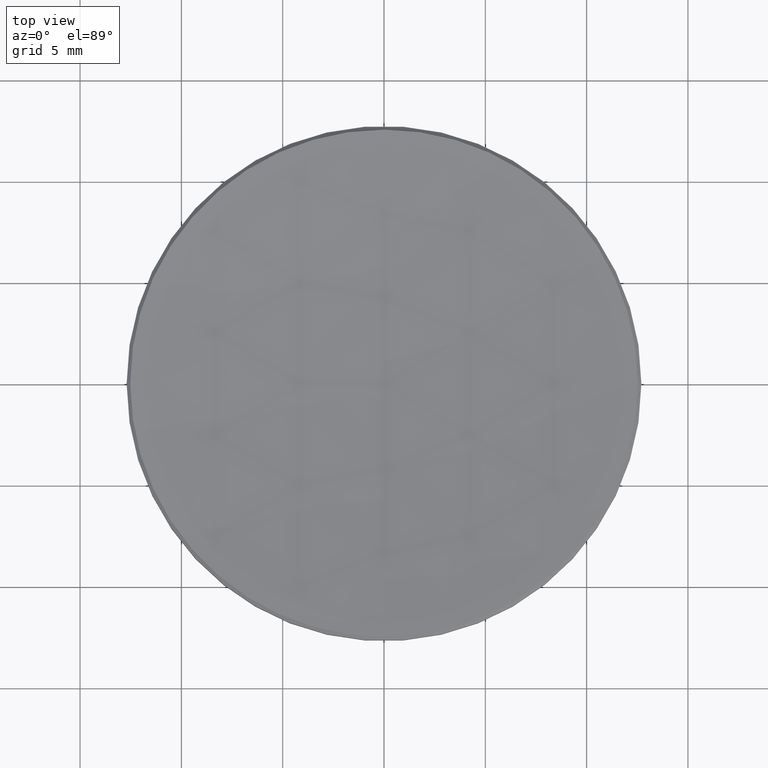
[diagram: clean part render]
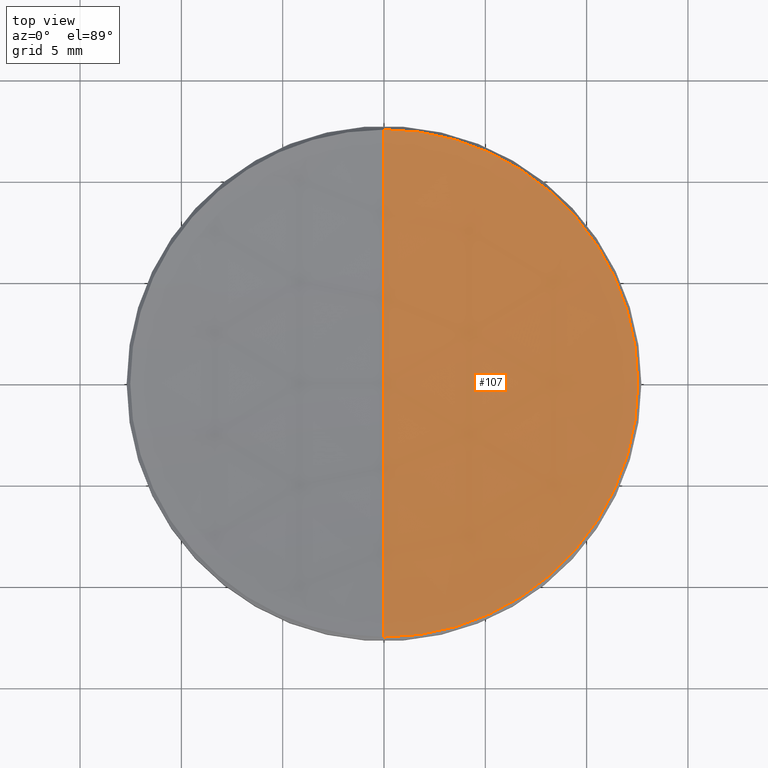
[diagram: same view with one face highlighted and labeled with its STEP entity id]
A machine part, top view. The second image highlights one B-rep face of the part: STEP entity #107.
In plain terms, the highlighted spherical surface has radius 106.9 mm.
Its self-contained STEP definition (entity closure, byte-faithful):
#23 = EDGE_CURVE ( 'NONE', #273, #49, #72, .T. ) ;
#28 = CIRCLE ( 'NONE', #225, 106.9000000000000057 ) ;
#30 = CIRCLE ( 'NONE', #272, 12.52123640383887704 ) ;
#40 = CARTESIAN_POINT ( 'NONE',  ( 0.000000000000000000, 0.000000000000000000, 5.978763596161104310 ) ) ;
#49 = VERTEX_POINT ( 'NONE', #306 ) ;
#53 = CARTESIAN_POINT ( 'NONE',  ( 0.000000000000000000, 0.000000000000000000, 5.978763596161104310 ) ) ;
#57 = CARTESIAN_POINT ( 'NONE',  ( 0.000000000000000000, 12.52123640383880421, 5.978763596161098093 ) ) ;
#67 = DIRECTION ( 'NONE',  ( -1.224646799147353207E-16, -1.000000000000000000, 0.000000000000000000 ) ) ;
#68 = CARTESIAN_POINT ( 'NONE',  ( -1.533409208332850696E-15, -12.52123640383880421, 5.978763596161098093 ) ) ;
#71 = VERTEX_POINT ( 'NONE', #57 ) ;
#72 = CIRCLE ( 'NONE', #84, 12.52123640383887704 ) ;
#73 = ORIENTED_EDGE ( 'NONE', *, *, #304, .T. ) ;
#84 = AXIS2_PLACEMENT_3D ( 'NONE', #53, #177, #255 ) ;
#93 = ORIENTED_EDGE ( 'NONE', *, *, #118, .T. ) ;
#99 = ORIENTED_EDGE ( 'NONE', *, *, #206, .F. ) ;
#107 = ADVANCED_FACE ( 'NONE', ( #139 ), #265, .F. ) ;
#110 = CARTESIAN_POINT ( 'NONE',  ( 0.000000000000000000, 0.000000000000000000, 112.1429225148808655 ) ) ;
#118 = EDGE_CURVE ( 'NONE', #193, #273, #28, .T. ) ;
#122 = CIRCLE ( 'NONE', #309, 106.9000000000000057 ) ;
#136 = DIRECTION ( 'NONE',  ( -0.000000000000000000, -0.000000000000000000, 1.000000000000000000 ) ) ;
#139 = FACE_OUTER_BOUND ( 'NONE', #230, .T. ) ;
#144 = ORIENTED_EDGE ( 'NONE', *, *, #23, .T. ) ;
#163 = DIRECTION ( 'NONE',  ( -1.000000000000000000, 1.224646799147353207E-16, 0.000000000000000000 ) ) ;
#176 = CARTESIAN_POINT ( 'NONE',  ( 0.000000000000000000, 0.000000000000000000, 112.1429225148808655 ) ) ;
#177 = DIRECTION ( 'NONE',  ( -0.000000000000000000, -0.000000000000000000, 1.000000000000000000 ) ) ;
#193 = VERTEX_POINT ( 'NONE', #308 ) ;
#206 = EDGE_CURVE ( 'NONE', #193, #71, #122, .T. ) ;
#210 = CARTESIAN_POINT ( 'NONE',  ( 0.000000000000000000, 0.000000000000000000, 112.1429225148808655 ) ) ;
#225 = AXIS2_PLACEMENT_3D ( 'NONE', #210, #163, #67 ) ;
#230 = EDGE_LOOP ( 'NONE', ( #99, #93, #144, #73 ) ) ;
#255 = DIRECTION ( 'NONE',  ( 1.000000000000000000, 0.000000000000000000, 0.000000000000000000 ) ) ;
#260 = DIRECTION ( 'NONE',  ( 0.000000000000000000, 0.000000000000000000, -1.000000000000000000 ) ) ;
#265 = SPHERICAL_SURFACE ( 'NONE', #271, 106.9000000000000057 ) ;
#271 = AXIS2_PLACEMENT_3D ( 'NONE', #110, #315, #287 ) ;
#272 = AXIS2_PLACEMENT_3D ( 'NONE', #40, #136, #317 ) ;
#273 = VERTEX_POINT ( 'NONE', #68 ) ;
#287 = DIRECTION ( 'NONE',  ( 0.000000000000000000, 1.000000000000000000, 0.000000000000000000 ) ) ;
#304 = EDGE_CURVE ( 'NONE', #49, #71, #30, .T. ) ;
#306 = CARTESIAN_POINT ( 'NONE',  ( 12.52123640383887704, 1.544355321624999001E-15, 5.978763596161104310 ) ) ;
#308 = CARTESIAN_POINT ( 'NONE',  ( 0.000000000000000000, 6.545737141442603608E-15, 5.242922514880857143 ) ) ;
#309 = AXIS2_PLACEMENT_3D ( 'NONE', #176, #313, #260 ) ;
#313 = DIRECTION ( 'NONE',  ( 1.000000000000000000, 0.000000000000000000, 0.000000000000000000 ) ) ;
#315 = DIRECTION ( 'NONE',  ( -1.000000000000000000, 0.000000000000000000, 0.000000000000000000 ) ) ;
#317 = DIRECTION ( 'NONE',  ( 1.000000000000000000, 0.000000000000000000, 0.000000000000000000 ) ) ;